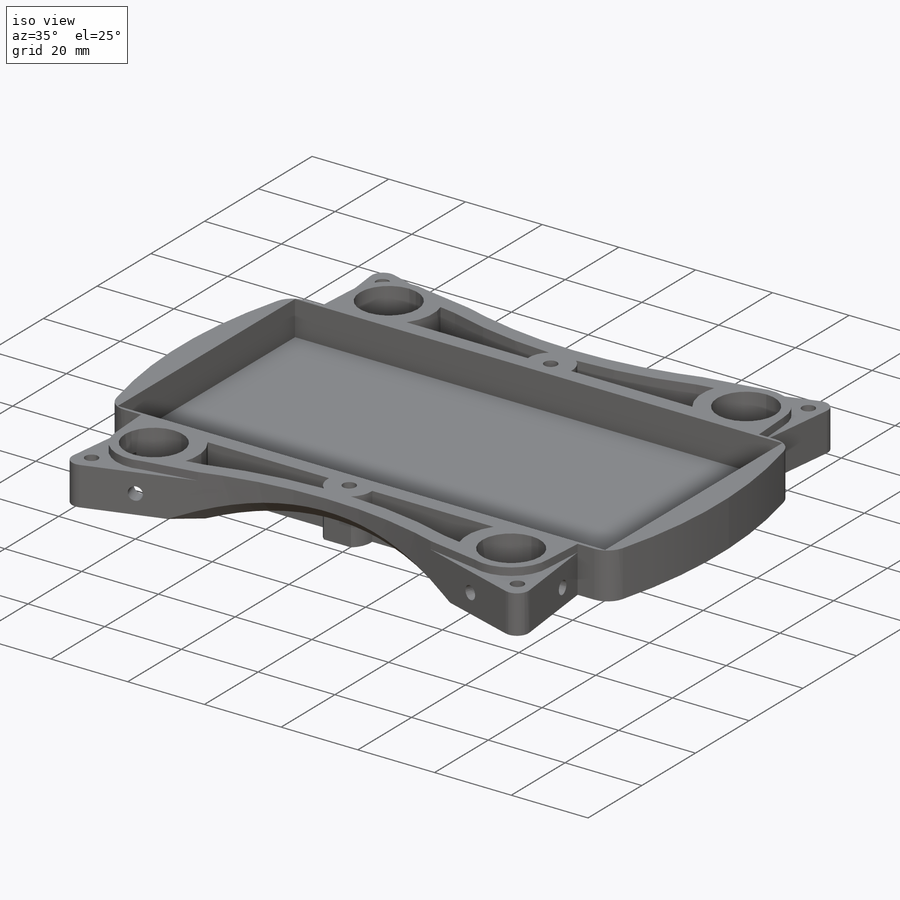
[diagram: iso view]
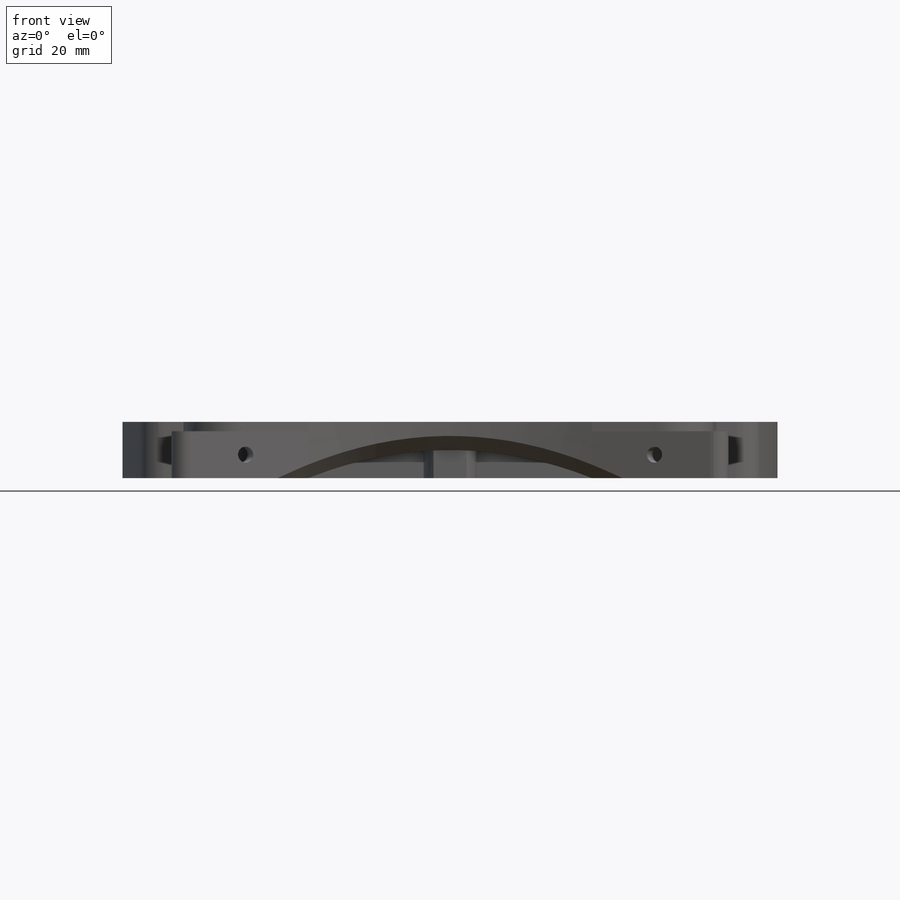
[diagram: front view]
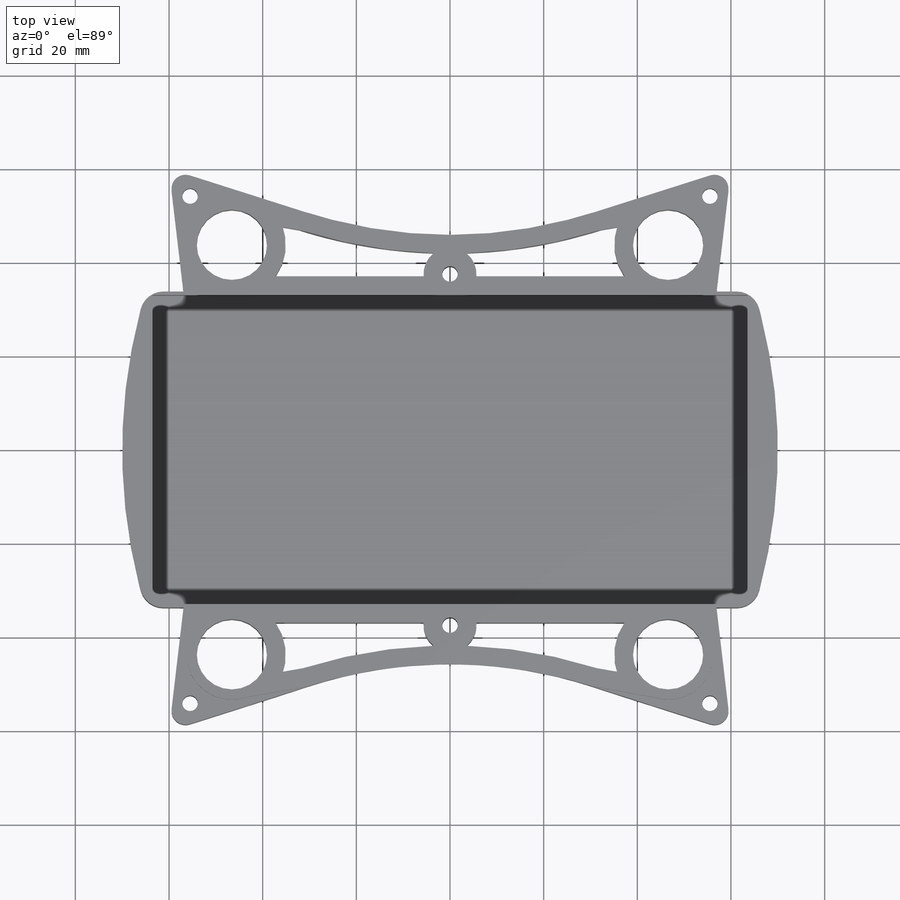
[diagram: top view]
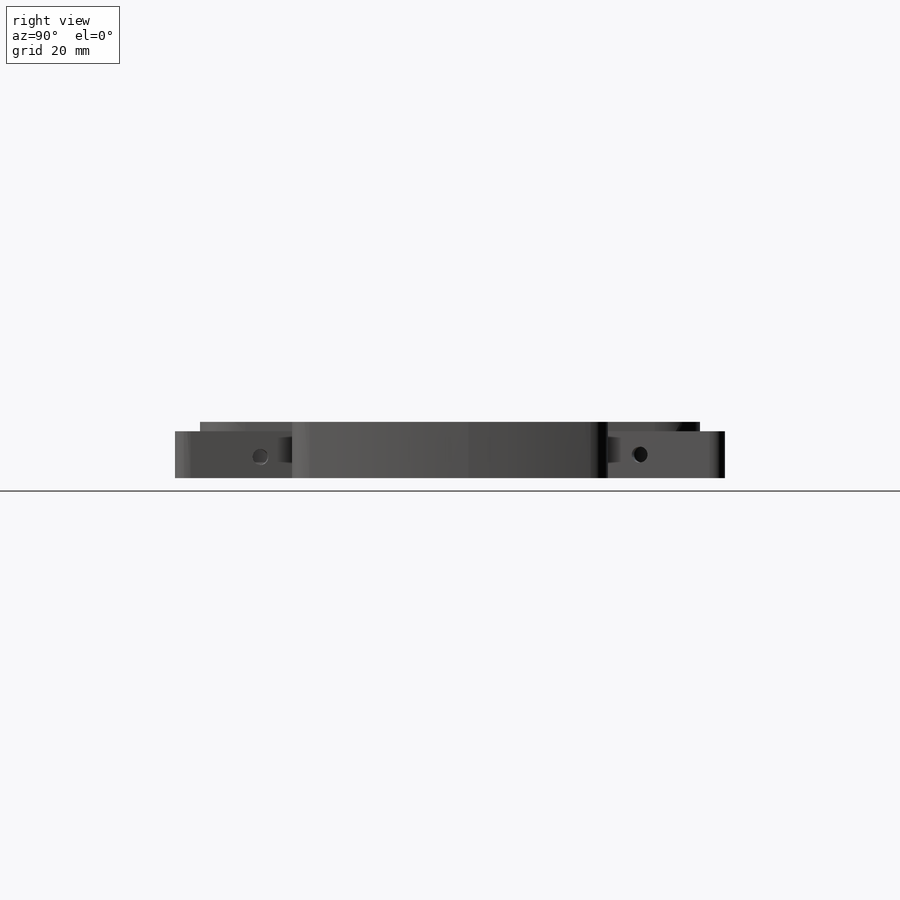
[diagram: right view]
SOLIDWORKS PART (.sldprt)
format: sldprt  version: not decoded by parser v0  size: 1,355,264 bytes
history: native  units: mm
features: sketch x33, cut_extrude x25, mirror x12, fillet x7, extrude x6, chamfer x6, material x1, shell x1 (+13 scaffold rows collapsed)
feature tree (104):
  scaffold x13  (default folders/planes/origin — collapsed)
  material  "Material <not specified>"
  sketch  "Sketch1"  dims[D1=100.0mm D2=50.0mm]
  extrude  "Boss-Extrude1"  Depth=30mm
  sketch  "Sketch2"  dims[D1=85.0mm D2=35.0mm]
  cut_extrude  "Cut-Extrude1"  Depth=20mm
  sketch  "Sketch3"  dims[c1.D1=100.0mm c1.D2=25.0mm c1.D3=25.0mm c1.D4=25.0mm c1.D5=20.0mm c1.D6=20.0mm c1.D7=20.0mm c1.D8=20.0mm c2.D1=60.0mm c2.D2=60.0mm c2.D3=60.0mm c2.D4=60.0mm c2.D5=60.0mm c2.D6=3.0mm c2.D7=25.0mm c2.D8=3.0mm c2.D9=25.0mm c2.D10=3.0mm c2.D11=25.0mm c2.D12=3.0mm c2.D13=25.0mm c2.D14=7.5mm c2.D15=7.5mm]
  extrude  "Boss-Extrude4"  [1 undecoded]
  sketch  "Sketch5"  dims[c1.D5=200.0mm c1.D7=~80.750193mm c1.D1=20.0mm c1.D2=42.5mm c1.D3=20.0mm c1.D4=100.0mm c1.D6=100.0mm c2.D7=100.0mm c2.D8=100.0mm]
  cut_extrude  "Cut-Extrude3"  Depth=100mm
  sketch  "Sketch7"  dims[c1.D3=~13.07243mm c1.D5=200.0mm c1.D6=~58.091072mm c1.D1=40.0mm c1.D2=40.0mm c2.D3=100.0mm c2.D4=100.0mm c2.D6=100.0mm c2.D7=100.0mm]
  cut_extrude  "Cut-Extrude5"  Depth=100mm
  sketch  "Sketch8"
  cut_extrude  "Cut-Extrude6"  Depth=100mm
  sketch  "Sketch10"
  cut_extrude  "Cut-Extrude7"  [1 undecoded]
  fillet  "Fillet10"  Radius=100mm
  chamfer  "Chamfer1"  Distance=12.5mm
  chamfer  "Chamfer2"  Distance=12.5mm
  chamfer  "Chamfer3"  Distance=12.5mm
  chamfer  "Chamfer4"  Distance=12.5mm
  fillet  "Fillet11"  Radius=3mm
  fillet  "Fillet13"  Radius=5mm
  fillet  "Fillet14"  Radius=3mm
  chamfer  "Chamfer5"  Distance=3mm Angle=45deg
  sketch  "Sketch11"  dims[D1=15.0mm D2=7.5mm]
  cut_extrude  "Cut-Extrude8"  Depth=5mm
  fillet  "Fillet17"  Radius=10mm
  sketch  "Sketch12"  dims[D1=4.5mm 10=15.0mm]
  cut_extrude  "Cut-Extrude9"  Depth=7mm
  sketch  "Sketch13"  dims[D1=5.0mm D2=15.0mm]
  cut_extrude  "Cut-Extrude10"  Depth=7mm
  sketch  "Sketch14"  dims[D1=5.0mm D2=15.0mm]
  cut_extrude  "Cut-Extrude11"  Depth=7mm
  sketch  "Sketch15"  dims[D1=5.0mm D2=15.0mm]
  cut_extrude  "Cut-Extrude12"  Depth=7mm
  sketch  "Sketch16"  dims[D1=3.4mm D2=5.0mm 12.5=12.5mm]
  cut_extrude  "Cut-Extrude13"  Depth=10mm
  sketch  "Sketch17"  dims[D1=5.0mm D2=12.5mm]
  cut_extrude  "Cut-Extrude14"  Depth=10mm
  sketch  "Sketch18"  dims[D1=5.0mm D2=12.5mm]
  cut_extrude  "Cut-Extrude15"  Depth=10mm
  sketch  "Sketch19"  dims[D1=5.0mm D2=12.5mm]
  cut_extrude  "Cut-Extrude16"  Depth=10mm
  fillet  "Fillet18"  Radius=1mm
  sketch  "Sketch34"
  cut_extrude  "Cut-Extrude26"  Depth=10mm
  sketch  "Sketch35"
  extrude  "Boss-Extrude5"  [1 undecoded]
  sketch  "Sketch36"  dims[c1.D1=67.5mm c1.D2=130.0mm c1.D3=70.0mm c1.D4=33.75mm c1.D5=67.5mm c1.D6=~67.516665mm c2.D5=70.0mm c2.D6=33.75mm c2.D7=130.0mm c2.D8=65.0mm c2.D9=65.0mm]
  extrude  "Boss-Extrude7"  [1 undecoded]
  sketch  "Sketch38"  dims[D1=66.0mm D2=127.0mm]
  cut_extrude  "Cut-Extrude28"  Depth=5mm
  sketch  "Sketch39"
  sketch  "Sketch40"
  extrude  "Boss-Extrude9"  Depth=4mm
  sketch  "Sketch47"  dims[D2=~7.564553mm D1=18.56mm]
  cut_extrude  "Cut-Extrude36"  Depth=2mm
  mirror  "Mirror3"
  mirror  "Mirror4"
  sketch  "Sketch48"  dims[D1=~5.665011mm]
  cut_extrude  "Cut-Extrude37"  Depth=20mm
  mirror  "Mirror5"
  mirror  "Mirror6"
  fillet  "Fillet19"  Radius=5mm
  sketch  "Sketch49"  dims[D1=~9.54592mm]
  cut_extrude  "Cut-Extrude39"  Depth=2mm
  mirror  "Mirror7"
  mirror  "Mirror8"
  sketch  "Sketch50"  dims[c1.D2=~1.834272mm c1.D1=13.73mm c2.D1=10.43mm c2.D2=8.93mm]
  cut_extrude  "Cut-Extrude41"  Depth=20mm
  mirror  "Mirror11"
  mirror  "Mirror12"
  sketch  "Sketch52"  dims[D1=37.5mm D2=0.0mm]
  cut_extrude  "Cut-Extrude44"  Depth=20mm
  mirror  "Mirror14"
  shell  "Shell4"  Thickness=4mm
  sketch  "Sketch53"
  cut_extrude  "Cut-Extrude46"  Depth=20mm
  mirror  "Mirror15"
  mirror  "Mirror16"
  sketch  "Sketch55"
  extrude  "Boss-Extrude10"  Depth=20mm
  sketch  "Sketch56"  dims[D1=6.0mm D2=0.0mm]
  cut_extrude  "Cut-Extrude47"  [1 undecoded]
  sketch  "Sketch58"
  mirror  "Mirror23"
  sketch  "Sketch59"  dims[D1=0.0mm D2=6.0mm]
  cut_extrude  "Cut-Extrude49"  [1 undecoded]
  sketch  "Sketch60"
  cut_extrude  "Cut-Extrude50"  Depth=1900mm
  chamfer  "Chamfer6"  Distance=3mm Angle=45deg
decode coverage: 62 of 90 modeling features carry decoded parameters
note: ~ marks probable driven/reference dimensions
note: 6 parameter values undecoded
summary: no parameter record found for 6 features
note: suppression state not decoded; provenance and decode notes live in map.json
